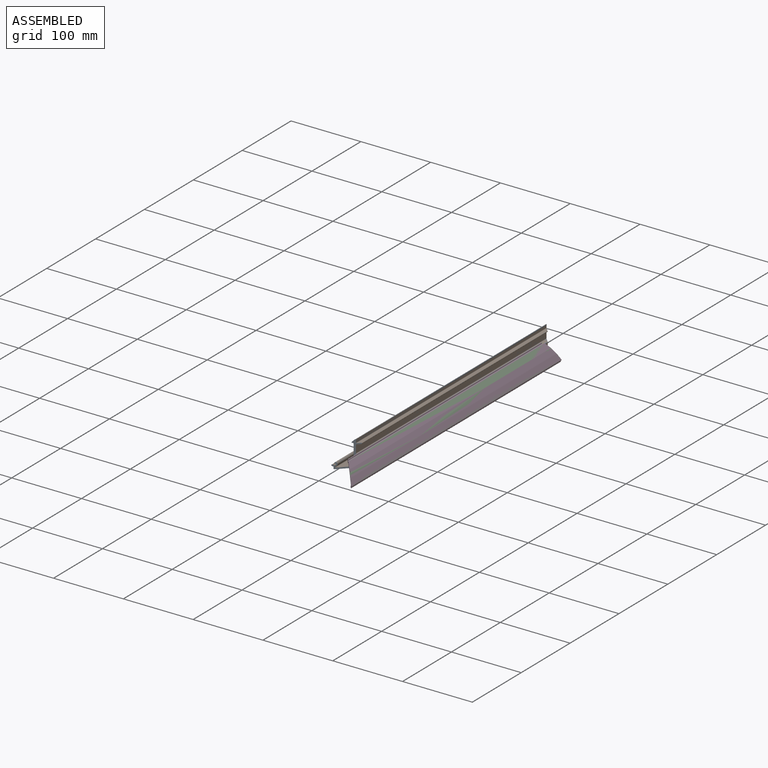
[diagram: assembled view]
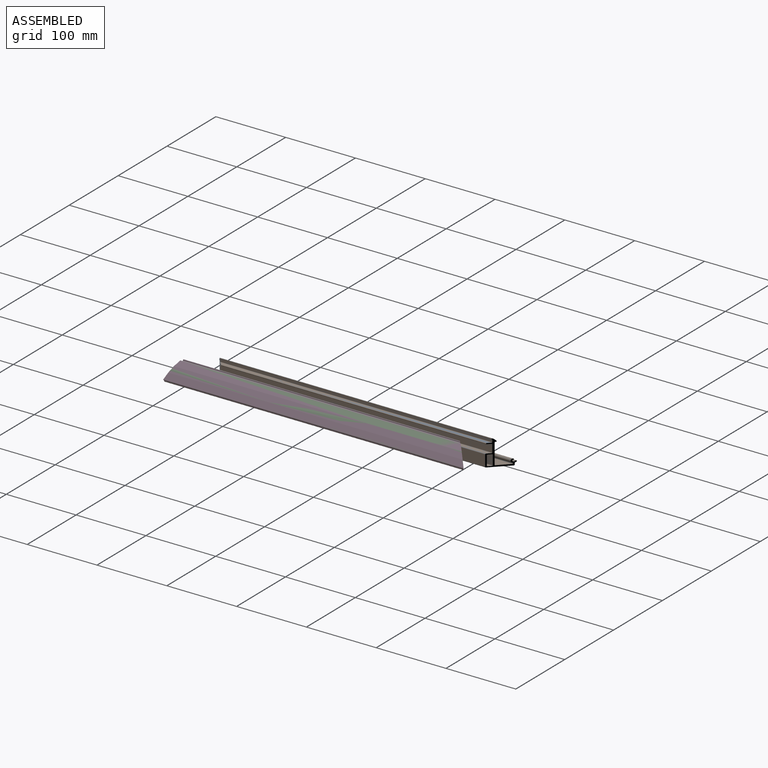
[diagram: assembled view, second angle]
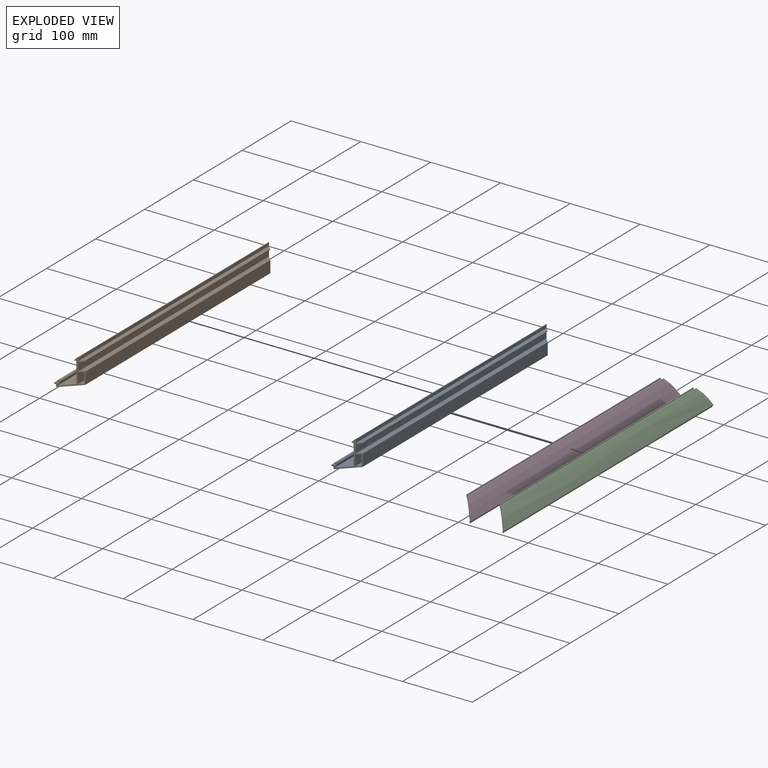
[diagram: exploded view]
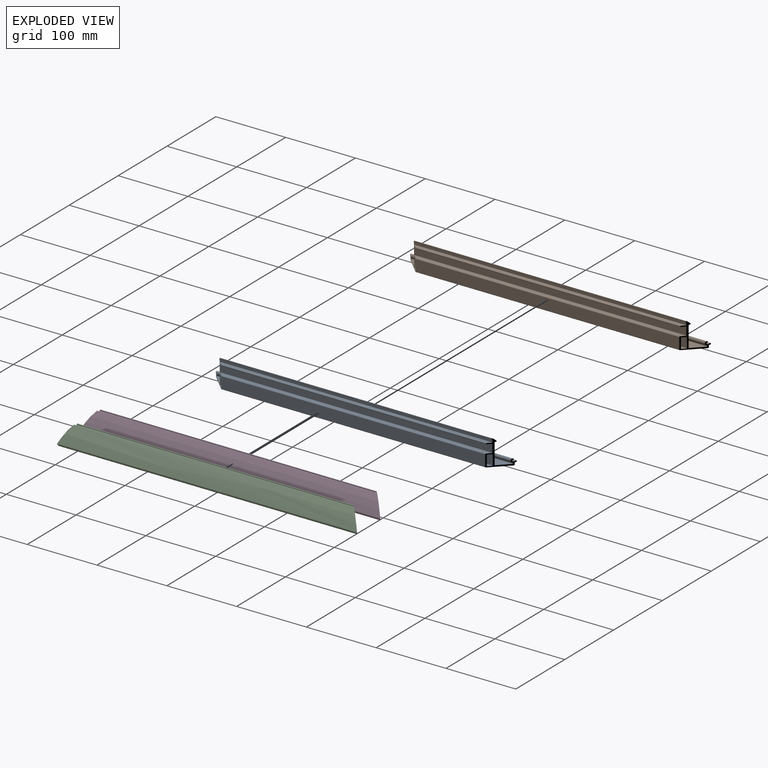
[diagram: exploded view, second angle]
ASSEMBLY  parts=4 mates=3
PART A: 53 faces, bbox 28.4x433.1x38.6 mm
  f0: plane 38.62x28.31mm, normal (0.71,0.71,0), area 237.5mm2, adj f2,f4,f5,f6,f7,f8,f9,f10
  f1: plane 38.62x28.31mm, normal (0.71,-0.71,0), area 237.4mm2, adj f2,f4,f5,f6,f7,f8,f9,f10
  f2: cylinder r=1mm len=379.82mm, axis (0,1,0), area 594.8mm2, adj f0,f1,f3,f12,f13,f16
  f3: plane 377.92x16.05mm, normal (1,0,0), area 6064.9mm2, adj f2,f4,f12,f13
  f4: cylinder r=1mm len=379.82mm, axis (0,1,0), area 594.8mm2, adj f0,f1,f3,f5,f12,f13
  f5: plane 388.87x4.52mm, normal (0,0,1), area 1738.8mm2, adj f0,f1,f4,f43
  f6: cylinder r=0.5mm len=381.87mm, axis (0,1,0), area 299.5mm2, adj f0,f1,f7,f10
  f7: plane 380.87x14mm, normal (-1,0,0), area 5332.1mm2, adj f0,f1,f6,f8
  f8: cylinder r=0.5mm len=381.87mm, axis (0,1,0), area 299.5mm2, adj f0,f1,f7,f11
  f9: cylinder r=0.5mm len=390.87mm, axis (0,1,0), area 306.6mm2, adj f0,f1,f11,f51
  f10: plane 389.87x4mm, normal (0,0,-1), area 1543.5mm2, adj f0,f1,f6,f52
  f11: plane 389.87x4mm, normal (0,0,1), area 1543.5mm2, adj f0,f1,f8,f9
  f12: cylinder r=0.12mm len=16.87mm, axis (0,0,1), area 1.6mm2, adj f1,f2,f3,f4
  f13: cylinder r=0.12mm len=16.87mm, axis (0,0,1), area 1.6mm2, adj f0,f2,f3,f4
  f14: plane 388.87x4.01mm, normal (0,0,1), area 1544.2mm2, adj f0,f1,f46,f48
  f15: plane 388.87x4.01mm, normal (0,0,-1), area 1544.2mm2, adj f0,f1,f47,f49
  f16: plane 425.82x23mm, normal (0,0,-1), area 9264.8mm2, adj f0,f1,f2,f41
  f17: plane 430.05x0.2mm, normal (0,0,1), area 87.2mm2, adj f0,f1,f36,f37
  f18: plane 423.77x14.45mm, normal (0,0,1), area 5915.5mm2, adj f0,f1,f27,f28
  f19: plane 389.87x0.25mm, normal (0,0,1), area 97.4mm2, adj f0,f1,f22,f23
  f20: cylinder r=0.25mm len=389.37mm, axis (0,1,0), area 152.8mm2, adj f0,f1,f21,f50
  f21: plane 388.87x1.02mm, normal (1,0,0), area 398.2mm2, adj f0,f1,f20,f22
  f22: cylinder r=0.25mm len=389.37mm, axis (0,1,0), area 152.8mm2, adj f0,f1,f19,f21
  f23: extruded ~397.24x3.71mm, area 2091mm2, adj f0,f1,f19,f24
  f24: cylinder r=0.75mm len=397.24mm, axis (0,1,0), area 586.8mm2, adj f0,f1,f23,f25
  f25: cylinder r=1mm len=395.86mm, axis (0,1,0), area 619.8mm2, adj f0,f1,f24,f26
  f26: plane 393.87x28.85mm, normal (-1,0,0), area 11362.2mm2, adj f0,f1,f25,f27
  f27: cylinder r=0.5mm len=394.87mm, axis (0,1,0), area 309.7mm2, adj f0,f1,f18,f26
  f28: cylinder r=0.5mm len=424.77mm, axis (0,1,0), area 333.2mm2, adj f0,f1,f18,f29
  f29: plane 424.77x0.83mm, normal (1,0,0), area 352.1mm2, adj f0,f1,f28,f30
  f30: cylinder r=0.5mm len=424.77mm, axis (0,1,0), area 249.4mm2, adj f0,f1,f29,f31
  f31: cylinder r=2.77mm len=424.24mm, axis (0,1,0), area 2769.7mm2, adj f0,f1,f30,f32
  f32: cylinder r=0.75mm len=426.29mm, axis (0,1,0), area 622.1mm2, adj f0,f1,f31,f33
  f33: plane 426.29x0.2mm, normal (-1,0,0), area 86.5mm2, adj f0,f1,f32,f34
  f34: cylinder r=0.5mm len=426.29mm, axis (0,1,0), area 272.8mm2, adj f0,f1,f33,f35
  f35: cylinder r=1.25mm len=428.69mm, axis (0,1,0), area 2198.4mm2, adj f0,f1,f34,f36
  f36: cylinder r=0.5mm len=429.65mm, axis (0,1,0), area 274.9mm2, adj f0,f1,f17,f35
  f37: cylinder r=0.75mm len=431.45mm, axis (0,1,0), area 630.1mm2, adj f0,f1,f17,f38
  f38: cylinder r=2.77mm len=431.45mm, axis (0,1,0), area 948.7mm2, adj f0,f1,f37,f39
  f39: cylinder r=0.5mm len=428.43mm, axis (0,1,0), area 251.5mm2, adj f0,f1,f38,f40
  f40: plane 427.82x2.33mm, normal (-1,0,0), area 996.4mm2, adj f0,f1,f39,f41
  f41: cylinder r=1mm len=427.82mm, axis (0,1,0), area 670.4mm2, adj f0,f1,f16,f40
  f42: plane 389.87x3.25mm, normal (1,0,0), area 1267.8mm2, adj f0,f1,f46,f50
  f43: cylinder r=0.5mm len=389.87mm, axis (0,1,0), area 305.8mm2, adj f0,f1,f5,f45
  f44: plane 379.34x0.02mm, normal (1,0,0), area 9.1mm2, adj f0,f1,f48,f49
  f45: plane 389.87x11mm, normal (1,0,0), area 4288.5mm2, adj f0,f1,f43,f47
  f46: cylinder r=0.5mm len=389.87mm, axis (0,1,0), area 305.8mm2, adj f0,f1,f14,f42
  f47: cylinder r=0.5mm len=389.87mm, axis (0,1,0), area 305.8mm2, adj f0,f1,f15,f45
  f48: cylinder r=0.75mm len=380.84mm, axis (0,1,0), area 447.8mm2, adj f0,f1,f14,f44
  f49: cylinder r=0.75mm len=380.84mm, axis (0,1,0), area 447.8mm2, adj f0,f1,f15,f44
  f50: cylinder r=0.25mm len=389.87mm, axis (0,1,0), area 153mm2, adj f0,f1,f20,f42
  f51: plane 390.87x14mm, normal (1,0,0), area 5472.1mm2, adj f0,f1,f9,f52
  f52: cylinder r=0.5mm len=390.87mm, axis (0,1,0), area 306.6mm2, adj f0,f1,f10,f51
PART B: 53 faces, bbox 30.3x436.5x40.5 mm
  f0: cylinder r=0.5mm len=381.51mm, axis (0,-1,0), area 299.2mm2, adj f1,f6,f9,f10
  f1: plane 380.51x14mm, normal (-1,0,0), area 5327.2mm2, adj f0,f2,f9,f10
  f2: cylinder r=0.5mm len=381.51mm, axis (0,-1,0), area 299.2mm2, adj f1,f7,f9,f10
  f3: plane 390.51x14mm, normal (1,0,0), area 5467.2mm2, adj f4,f5,f9,f10
  f4: cylinder r=0.5mm len=390.51mm, axis (0,-1,0), area 306.3mm2, adj f3,f6,f9,f10
  f5: cylinder r=0.5mm len=390.51mm, axis (0,-1,0), area 306.3mm2, adj f3,f7,f9,f10
  f6: plane 389.51x4mm, normal (0,0,-1), area 1542mm2, adj f0,f4,f9,f10
  f7: plane 389.51x4mm, normal (0,0,1), area 1542mm2, adj f2,f5,f9,f10
  f8: cylinder r=0.25mm len=17.18mm, axis (0,0,-1), area 3.3mm2, adj f9,f36,f37,f39
  f9: plane 40.55x30.14mm, normal (0.71,-0.71,0), area 235.3mm2, adj f0,f1,f2,f3,f4,f5,f6,f7
  f10: plane 40.55x30.14mm, normal (0.71,0.71,0), area 235.3mm2, adj f0,f1,f2,f3,f4,f5,f6,f7
  f11: cylinder r=0.25mm len=17.18mm, axis (0,0,-1), area 3.3mm2, adj f10,f36,f37,f39
  f12: plane 389.51x0.25mm, normal (0,0,1), area 97.3mm2, adj f9,f10,f51,f52
  f13: plane 388.51x4.01mm, normal (0,0,1), area 1542.8mm2, adj f9,f10,f45,f46
  f14: plane 388.51x4.01mm, normal (0,0,-1), area 1542.8mm2, adj f9,f10,f42,f43
  f15: plane 425.46x23mm, normal (0,0,-1), area 9256.7mm2, adj f9,f10,f35,f36
  f16: plane 429.7x0.2mm, normal (0,0,1), area 87.1mm2, adj f9,f10,f30,f31
  f17: plane 423.42x14.45mm, normal (0,0,1), area 5910.3mm2, adj f9,f10,f21,f22
  f18: cylinder r=0.75mm len=396.89mm, axis (0,-1,0), area 586.3mm2, adj f9,f10,f19,f52
  f19: cylinder r=1mm len=395.51mm, axis (0,-1,0), area 619.2mm2, adj f9,f10,f18,f20
  f20: plane 393.51x28.85mm, normal (-1,0,0), area 11352mm2, adj f9,f10,f19,f21
  f21: cylinder r=0.5mm len=394.51mm, axis (0,-1,0), area 309.5mm2, adj f9,f10,f17,f20
  f22: cylinder r=0.5mm len=424.42mm, axis (0,-1,0), area 332.9mm2, adj f9,f10,f17,f23
  f23: plane 424.42x0.83mm, normal (1,0,0), area 351.8mm2, adj f9,f10,f22,f24
  f24: cylinder r=0.5mm len=424.42mm, axis (0,-1,0), area 249.2mm2, adj f9,f10,f23,f25
  f25: cylinder r=2.77mm len=423.88mm, axis (0,-1,0), area 2782.1mm2, adj f9,f10,f24,f26
  f26: cylinder r=0.75mm len=425.94mm, axis (0,-1,0), area 621.6mm2, adj f9,f10,f25,f27
  f27: plane 425.94x0.2mm, normal (-1,0,0), area 86.4mm2, adj f9,f10,f26,f28
  f28: cylinder r=0.5mm len=425.94mm, axis (0,-1,0), area 272.6mm2, adj f9,f10,f27,f29
  f29: cylinder r=1.25mm len=428.34mm, axis (0,-1,0), area 2204.8mm2, adj f9,f10,f28,f30
  f30: cylinder r=0.5mm len=429.29mm, axis (0,-1,0), area 274.7mm2, adj f9,f10,f16,f29
  f31: cylinder r=0.75mm len=431.09mm, axis (0,-1,0), area 629.6mm2, adj f9,f10,f16,f32
  f32: cylinder r=2.77mm len=431.09mm, axis (0,-1,0), area 948mm2, adj f9,f10,f31,f33
  f33: cylinder r=0.5mm len=428.08mm, axis (0,-1,0), area 251.3mm2, adj f9,f10,f32,f34
  f34: plane 427.46x2.33mm, normal (-1,0,0), area 995.6mm2, adj f9,f10,f33,f35
  f35: cylinder r=1mm len=427.46mm, axis (0,-1,0), area 669.9mm2, adj f9,f10,f15,f34
  f36: cylinder r=1mm len=379.46mm, axis (0,-1,0), area 594.2mm2, adj f8,f9,f10,f11,f15,f37
  f37: plane 377.67x16.05mm, normal (1,0,0), area 6060.9mm2, adj f8,f11,f36,f39
  f38: plane 388.51x4.52mm, normal (0,0,1), area 1737.2mm2, adj f9,f10,f39,f40
  f39: cylinder r=1mm len=379.46mm, axis (0,-1,0), area 594.2mm2, adj f8,f9,f10,f11,f37,f38
  f40: cylinder r=0.5mm len=389.51mm, axis (0,-1,0), area 305.5mm2, adj f9,f10,f38,f41
  f41: plane 389.51x11mm, normal (1,0,0), area 4284.6mm2, adj f9,f10,f40,f42
  f42: cylinder r=0.5mm len=389.51mm, axis (0,-1,0), area 305.5mm2, adj f9,f10,f14,f41
  f43: cylinder r=0.75mm len=380.49mm, axis (0,-1,0), area 447.4mm2, adj f9,f10,f14,f44
  f44: plane 378.99x0.02mm, normal (1,0,0), area 9.1mm2, adj f9,f10,f43,f45
  f45: cylinder r=0.75mm len=380.49mm, axis (0,-1,0), area 447.4mm2, adj f9,f10,f13,f44
  f46: cylinder r=0.5mm len=389.51mm, axis (0,-1,0), area 305.5mm2, adj f9,f10,f13,f47
  f47: plane 389.51x3.25mm, normal (1,0,0), area 1266.7mm2, adj f9,f10,f46,f48
  f48: cylinder r=0.25mm len=389.51mm, axis (0,-1,0), area 152.9mm2, adj f9,f10,f47,f49
  f49: cylinder r=0.25mm len=389.01mm, axis (0,-1,0), area 152.7mm2, adj f9,f10,f48,f50
  f50: plane 388.51x1.02mm, normal (1,0,0), area 397.8mm2, adj f9,f10,f49,f51
  f51: cylinder r=0.25mm len=389.01mm, axis (0,-1,0), area 152.7mm2, adj f9,f10,f12,f50
  f52: bspline ~433.04x3.71mm, area 2077.3mm2, adj f9,f10,f12,f18
PART C: 17 faces, bbox 21x434x30 mm
  f0: cylinder r=0.25mm len=401.1mm, axis (0,1,0), area 126mm2, adj f1,f14,f15,f16
  f1: cylinder r=2.52mm len=400.53mm, axis (0,1,0), area 1922.4mm2, adj f0,f2,f15,f16
  f2: cylinder r=1mm len=395.87mm, axis (0,1,0), area 725.4mm2, adj f1,f3,f15,f16
  f3: cylinder r=0.5mm len=396.65mm, axis (0,1,0), area 334.4mm2, adj f2,f4,f15,f16
  f4: cylinder r=1mm len=400.47mm, axis (0,1,0), area 1249mm2, adj f3,f5,f15,f16
  f5: cylinder r=0.25mm len=401.31mm, axis (0,1,0), area 210.6mm2, adj f4,f6,f15,f16
  f6: bspline ~431.27x22.89mm, area 11266.2mm2, adj f5,f7,f15,f16
  f7: cylinder r=0.75mm len=429.84mm, axis (0,1,0), area 470.8mm2, adj f6,f8,f15,f16
  f8: plane 429.25x0.21mm, normal (0.51,0,-0.86), area 107.3mm2, adj f7,f9,f15,f16
  f9: cylinder r=0.5mm len=428.82mm, axis (0,1,0), area 274.5mm2, adj f8,f10,f15,f16
  f10: cylinder r=1.25mm len=428.36mm, axis (0,1,0), area 2492.6mm2, adj f9,f11,f15,f16
  f11: cylinder r=0.5mm len=425.94mm, axis (0,1,0), area 272.6mm2, adj f10,f12,f15,f16
  f12: plane 425.94x0.74mm, normal (-1,0,0), area 315.6mm2, adj f11,f13,f15,f16
  f13: cylinder r=0.5mm len=425.94mm, axis (0,1,0), area 93.4mm2, adj f12,f14,f15,f16
  f14: bspline ~431.27x20.03mm, area 9773.1mm2, adj f0,f13,f15,f16
  f15: plane 29.98x20.96mm, normal (-0.71,0.71,0), area 76.3mm2, adj f0,f1,f2,f3,f4,f5,f6,f7
  f16: plane 29.98x20.96mm, normal (-0.71,-0.71,0), area 76.3mm2, adj f0,f1,f2,f3,f4,f5,f6,f7
PART D: 17 faces, bbox 21x433.1x30 mm
  f0: cylinder r=0.25mm len=401.46mm, axis (0,-1,0), area 126.1mm2, adj f1,f6,f14,f15
  f1: extruded ~426.2x20.03mm, area 9795.8mm2, adj f0,f13,f14,f15
  f2: extruded ~430.19x22.89mm, area 11297.5mm2, adj f8,f9,f14,f15
  f3: cylinder r=0.5mm len=397mm, axis (0,-1,0), area 334.7mm2, adj f4,f5,f14,f15
  f4: cylinder r=1mm len=400.82mm, axis (0,-1,0), area 1250.2mm2, adj f3,f8,f14,f15
  f5: cylinder r=1mm len=396.23mm, axis (0,-1,0), area 684.8mm2, adj f3,f6,f14,f15
  f6: cylinder r=2.52mm len=400.88mm, axis (0,-1,0), area 1965.5mm2, adj f0,f5,f14,f15
  f7: cylinder r=0.5mm len=429.17mm, axis (0,-1,0), area 274.7mm2, adj f10,f14,f15,f16
  f8: cylinder r=0.25mm len=401.67mm, axis (0,-1,0), area 210.8mm2, adj f2,f4,f14,f15
  f9: cylinder r=0.75mm len=430.19mm, axis (0,-1,0), area 471.2mm2, adj f2,f10,f14,f15
  f10: plane 429.6x0.21mm, normal (0.51,0,-0.86), area 107.3mm2, adj f7,f9,f14,f15
  f11: cylinder r=0.5mm len=426.29mm, axis (0,-1,0), area 272.8mm2, adj f12,f14,f15,f16
  f12: plane 426.29x0.74mm, normal (-1,0,0), area 315.8mm2, adj f11,f13,f14,f15
  f13: cylinder r=0.5mm len=426.29mm, axis (0,-1,0), area 93.5mm2, adj f1,f12,f14,f15
  f14: plane 29.98x20.96mm, normal (-0.71,0.71,0), area 76.4mm2, adj f0,f1,f2,f3,f4,f5,f6,f7
  f15: plane 29.98x20.96mm, normal (-0.71,-0.71,0), area 76.3mm2, adj f0,f1,f2,f3,f4,f5,f6,f7
  f16: cylinder r=1.25mm len=428.72mm, axis (0,-1,0), area 2494.7mm2, adj f7,f11,f14,f15
PLACE A t=(29.41,37.56,23.72)mm
PLACE B t=(29.41,37.56,23.72)mm
PLACE C t=(-1134.58,0,21.98)mm
PLACE D t=(-1134.58,0,21.98)mm
MATE planar A.f3 <-> B.f37  axis (1,0,0) through (29.41,37.56,32.74)mm
MATE planar A.f16 <-> B.f15  axis (0,0,-1) through (16.69,37.56,23.72)mm
MATE cylindrical D.f16 <-> C.f10  axis (0,-1,0) through (55.23,0,28.33)mm
